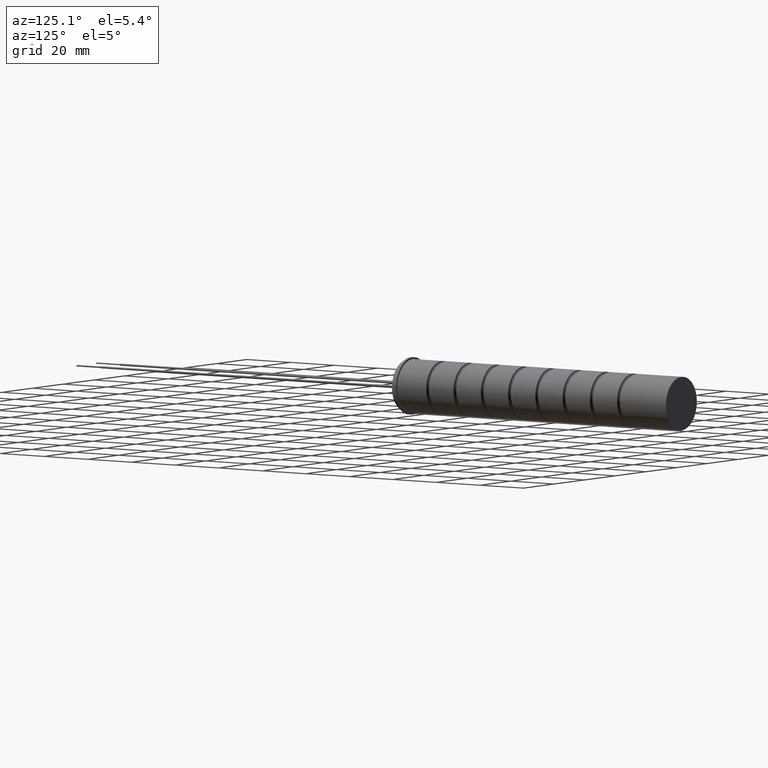
[diagram: clean part render]
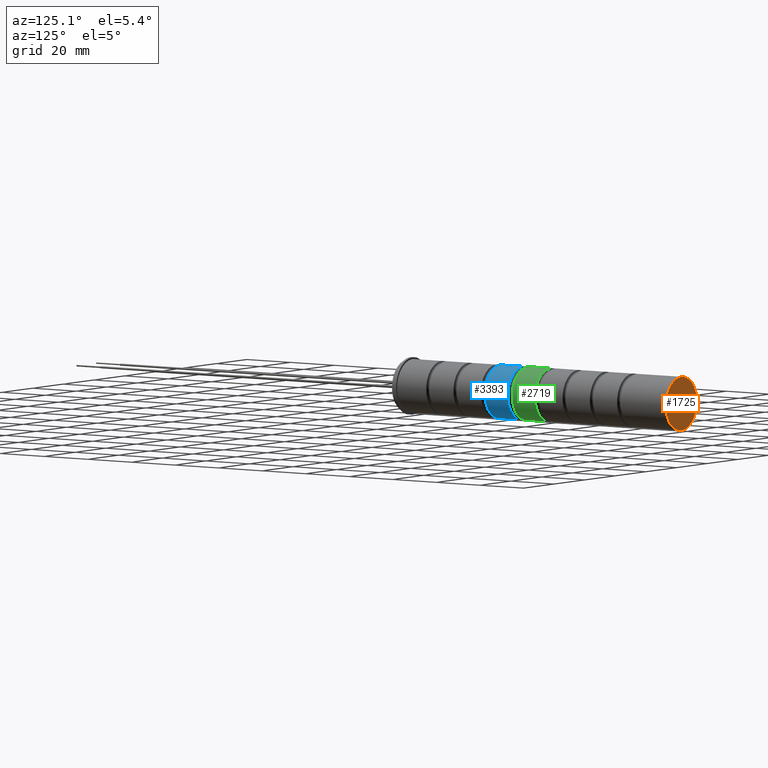
[diagram: same view with three faces highlighted in distinct colors, each labeled with its STEP entity id]
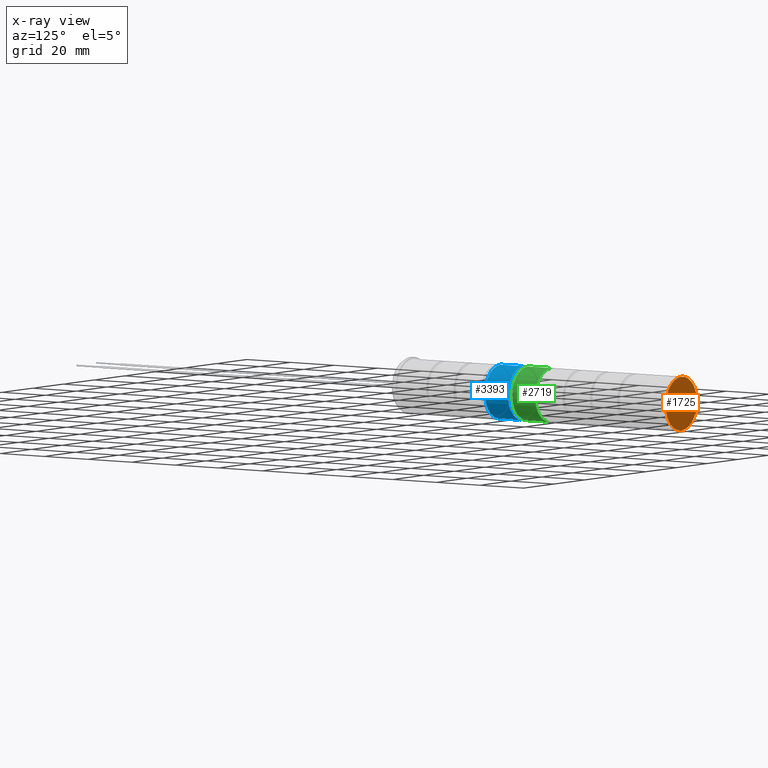
[diagram: x-ray of the same camera — body ghosted, the three highlighted faces saturated]
A machine part, auxiliary view with three faces highlighted in distinct colors.
The next image is the same camera in x-ray (body ghosted, the three faces saturated) — at least one of them is partly hidden behind the body in this view.
Their STEP definitions:

[orange] entity #1725 — the highlighted planar face has unit normal (0, 1, 0).
#36 = CARTESIAN_POINT ( 'NONE',  ( 5.163478142038603600, 125.9000000000000100, 1.512381406993834600 ) ) ;
#54 = DIRECTION ( 'NONE',  ( 0.0000000000000000000, 1.000000000000000000, 0.0000000000000000000 ) ) ;
#68 = VECTOR ( 'NONE', #3321, 1000.000000000000100 ) ;
#70 = ORIENTED_EDGE ( 'NONE', *, *, #1214, .F. ) ;
#74 = VERTEX_POINT ( 'NONE', #4720 ) ;
#77 = CARTESIAN_POINT ( 'NONE',  ( -6.389346714668432600, 125.9000000000000100, -0.1296916808415295700 ) ) ;
#87 = EDGE_CURVE ( 'NONE', #1929, #751, #2536, .T. ) ;
#95 = DIRECTION ( 'NONE',  ( -0.2762517575166425500, 0.0000000000000000000, 0.9610853065513831300 ) ) ;
#111 = CARTESIAN_POINT ( 'NONE',  ( -3.073241531447511200, 125.9000000000000100, -0.3736936597755416400 ) ) ;
#116 = DIRECTION ( 'NONE',  ( 0.2740217765954065500, 0.0000000000000000000, -0.9617234872620595800 ) ) ;
#129 = LINE ( 'NONE', #3218, #3385 ) ;
#131 = CARTESIAN_POINT ( 'NONE',  ( -3.446908929830707200, 125.9000000000000100, 0.9370204187942854400 ) ) ;
#134 = VERTEX_POINT ( 'NONE', #3935 ) ;
#137 = DIRECTION ( 'NONE',  ( 0.2746459304916903900, 0.0000000000000000000, -0.9615454294334477800 ) ) ;
#144 = ORIENTED_EDGE ( 'NONE', *, *, #3701, .F. ) ;
#154 = VERTEX_POINT ( 'NONE', #3677 ) ;
#169 = CARTESIAN_POINT ( 'NONE',  ( 7.722211540264785500, 125.9000000000000100, -1.511845419271361500 ) ) ;
#179 = CARTESIAN_POINT ( 'NONE',  ( 3.236639526276111000, 125.9000000000000100, 0.1853821388750753800 ) ) ;
#185 = CARTESIAN_POINT ( 'NONE',  ( -4.078900387599527600, 125.9000000000000100, -1.511845419271360200 ) ) ;
#192 = LINE ( 'NONE', #1811, #4082 ) ;
#200 = ORIENTED_EDGE ( 'NONE', *, *, #872, .F. ) ;
#201 = FACE_BOUND ( 'NONE', #4679, .T. ) ;
#203 = EDGE_CURVE ( 'NONE', #4278, #3505, #2475, .T. ) ;
#230 = DIRECTION ( 'NONE',  ( 1.000000000000000000, 0.0000000000000000000, -8.056442090582003100E-016 ) ) ;
#236 = VECTOR ( 'NONE', #4280, 1000.000000000000000 ) ;
#248 = CARTESIAN_POINT ( 'NONE',  ( 6.726378173961584200, 125.9000000000000100, -0.9279234420928131900 ) ) ;
#265 = VECTOR ( 'NONE', #4560, 1000.000000000000000 ) ;
#270 = VECTOR ( 'NONE', #720, 999.9999999999998900 ) ;
#310 = EDGE_LOOP ( 'NONE', ( #1390, #1612, #1770, #2145, #681, #1596, #4741, #4092, #4639, #3967, #4593, #2293, #1227, #3928, #1263, #2479, #4608 ) ) ;
#318 = DIRECTION ( 'NONE',  ( 0.0000000000000000000, 1.000000000000000000, 0.0000000000000000000 ) ) ;
#323 = CARTESIAN_POINT ( 'NONE',  ( -1.368197817950697900, 125.9000000000000100, -1.511845419271360200 ) ) ;
#342 = CARTESIAN_POINT ( 'NONE',  ( 2.503024381027683500, 125.9000000000000100, -1.511845419271361100 ) ) ;
#345 = CARTESIAN_POINT ( 'NONE',  ( -3.232746273359999200, 125.9000000000000100, 0.1853821388687315100 ) ) ;
#354 = DIRECTION ( 'NONE',  ( -1.000000000000000000, 0.0000000000000000000, 0.0000000000000000000 ) ) ;
#363 = EDGE_CURVE ( 'NONE', #2087, #1805, #2058, .T. ) ;
#371 = EDGE_CURVE ( 'NONE', #1299, #4559, #3697, .T. ) ;
#388 = ORIENTED_EDGE ( 'NONE', *, *, #87, .F. ) ;
#406 = VERTEX_POINT ( 'NONE', #527 ) ;
#418 = LINE ( 'NONE', #2907, #943 ) ;
#419 = CARTESIAN_POINT ( 'NONE',  ( 0.2137552396348912900, 125.9000000000000100, 1.512381406993835900 ) ) ;
#424 = LINE ( 'NONE', #4790, #1852 ) ;
#428 = DIRECTION ( 'NONE',  ( 0.2755265765475187200, -0.0000000000000000000, -0.9612934544747531200 ) ) ;
#434 = ORIENTED_EDGE ( 'NONE', *, *, #371, .F. ) ;
#436 = VECTOR ( 'NONE', #4080, 1000.000000000000000 ) ;
#443 = EDGE_CURVE ( 'NONE', #3505, #952, #3635, .T. ) ;
#446 = ORIENTED_EDGE ( 'NONE', *, *, #4647, .F. ) ;
#463 = CARTESIAN_POINT ( 'NONE',  ( 3.559823756595848400, 125.9000000000000100, -0.9360982210452172300 ) ) ;
#473 = VERTEX_POINT ( 'NONE', #2398 ) ;
#485 = DIRECTION ( 'NONE',  ( -0.2764273280489766800, 0.0000000000000000000, 0.9610348236706635100 ) ) ;
#507 = ORIENTED_EDGE ( 'NONE', *, *, #4409, .T. ) ;
#511 = ORIENTED_EDGE ( 'NONE', *, *, #1323, .F. ) ;
#514 = DIRECTION ( 'NONE',  ( 0.0000000000000000000, 1.000000000000000000, 0.0000000000000000000 ) ) ;
#516 = CARTESIAN_POINT ( 'NONE',  ( -5.074145240952069500, 125.9000000000000100, -1.511845419271360200 ) ) ;
#517 = CARTESIAN_POINT ( 'NONE',  ( -5.730224127601281300, 125.9000000000000100, 1.512381406993835500 ) ) ;
#523 = ORIENTED_EDGE ( 'NONE', *, *, #994, .F. ) ;
#527 = CARTESIAN_POINT ( 'NONE',  ( 3.396144268184926300, 125.9000000000000100, -0.3735925095248245300 ) ) ;
#530 = PLANE ( 'NONE',  #4421 ) ;
#539 = LINE ( 'NONE', #1634, #660 ) ;
#575 = LINE ( 'NONE', #743, #3517 ) ;
#585 = VERTEX_POINT ( 'NONE', #2234 ) ;
#587 = VECTOR ( 'NONE', #964, 1000.000000000000100 ) ;
#598 = LINE ( 'NONE', #3458, #4297 ) ;
#601 = EDGE_CURVE ( 'NONE', #3489, #1358, #1321, .T. ) ;
#604 = LINE ( 'NONE', #2975, #4131 ) ;
#617 = CARTESIAN_POINT ( 'NONE',  ( 0.0000000000000000000, 125.9000000000000100, 0.0000000000000000000 ) ) ;
#618 = AXIS2_PLACEMENT_3D ( 'NONE', #4093, #318, #731 ) ;
#629 = VERTEX_POINT ( 'NONE', #4797 ) ;
#630 = CARTESIAN_POINT ( 'NONE',  ( -1.214624161055740000, 125.9000000000000100, 1.512381406993836400 ) ) ;
#631 = EDGE_CURVE ( 'NONE', #4559, #3139, #1729, .T. ) ;
#636 = CARTESIAN_POINT ( 'NONE',  ( 5.865093027754670500, 125.9000000000000100, -0.9279234421003176300 ) ) ;
#642 = VECTOR ( 'NONE', #4634, 1000.000000000000200 ) ;
#647 = CARTESIAN_POINT ( 'NONE',  ( 4.534286832206290400, 125.9000000000000100, 0.1853821388750753800 ) ) ;
#651 = LINE ( 'NONE', #3490, #1196 ) ;
#658 = CARTESIAN_POINT ( 'NONE',  ( -6.850840110267109900, 125.9000000000000100, -1.511845419271360200 ) ) ;
#660 = VECTOR ( 'NONE', #3874, 1000.000000000000000 ) ;
#668 = EDGE_CURVE ( 'NONE', #4408, #1929, #897, .T. ) ;
#679 = VECTOR ( 'NONE', #3318, 1000.000000000000000 ) ;
#681 = ORIENTED_EDGE ( 'NONE', *, *, #4153, .F. ) ;
#689 = CARTESIAN_POINT ( 'NONE',  ( -5.989738873596197200, 125.9000000000000100, -1.511845419271360200 ) ) ;
#697 = VERTEX_POINT ( 'NONE', #2266 ) ;
#720 = DIRECTION ( 'NONE',  ( 0.9999960426590096500, 0.0000000000000000000, 0.002813301676023199000 ) ) ;
#723 = LINE ( 'NONE', #1393, #3312 ) ;
#725 = LINE ( 'NONE', #2218, #2895 ) ;
#731 = DIRECTION ( 'NONE',  ( 0.0000000000000000000, 0.0000000000000000000, 1.000000000000000000 ) ) ;
#743 = CARTESIAN_POINT ( 'NONE',  ( 1.641923144357048800, 125.9000000000000100, -1.192973867605196400 ) ) ;
#748 = CARTESIAN_POINT ( 'NONE',  ( 4.945692467684854600, 125.9000000000000100, -0.9321993388483560400 ) ) ;
#751 = VERTEX_POINT ( 'NONE', #3033 ) ;
#778 = CARTESIAN_POINT ( 'NONE',  ( -1.531693396827904100, 125.9000000000000100, -0.9361993712943260700 ) ) ;
#782 = LINE ( 'NONE', #323, #4137 ) ;
#851 = ORIENTED_EDGE ( 'NONE', *, *, #601, .F. ) ;
#853 = EDGE_CURVE ( 'NONE', #2346, #1313, #2139, .T. ) ;
#872 = EDGE_CURVE ( 'NONE', #1313, #3335, #782, .T. ) ;
#873 = DIRECTION ( 'NONE',  ( -0.7059037656364501900, -0.0000000000000000000, 0.7083077534943970100 ) ) ;
#876 = CARTESIAN_POINT ( 'NONE',  ( 0.0000000000000000000, 125.9000000000000100, -10.15000000000000000 ) ) ;
#890 = VECTOR ( 'NONE', #2415, 1000.000000000000000 ) ;
#897 = LINE ( 'NONE', #2200, #4546 ) ;
#905 = LINE ( 'NONE', #630, #4555 ) ;
#915 = CARTESIAN_POINT ( 'NONE',  ( -0.4415604200045902800, 125.9000000000000100, -1.180008245214740200 ) ) ;
#916 = EDGE_CURVE ( 'NONE', #3139, #3489, #2378, .T. ) ;
#919 = CARTESIAN_POINT ( 'NONE',  ( -7.719950607297668900, 125.9000000000000100, 1.512381406993835100 ) ) ;
#943 = VECTOR ( 'NONE', #4086, 1000.000000000000000 ) ;
#952 = VERTEX_POINT ( 'NONE', #1202 ) ;
#964 = DIRECTION ( 'NONE',  ( -0.2765379750249955500, 0.0000000000000000000, 0.9610029908221279200 ) ) ;
#966 = CARTESIAN_POINT ( 'NONE',  ( 4.282385938637075300, 125.9000000000000100, 1.512381406993834600 ) ) ;
#971 = EDGE_CURVE ( 'NONE', #4271, #3265, #604, .T. ) ;
#994 = EDGE_CURVE ( 'NONE', #751, #2941, #1142, .T. ) ;
#1011 = VECTOR ( 'NONE', #1803, 1000.000000000000000 ) ;
#1030 = VERTEX_POINT ( 'NONE', #2182 ) ;
#1071 = DIRECTION ( 'NONE',  ( 1.000000000000000000, 0.0000000000000000000, 0.0000000000000000000 ) ) ;
#1075 = DIRECTION ( 'NONE',  ( -1.000000000000000000, 0.0000000000000000000, 0.0000000000000000000 ) ) ;
#1081 = VERTEX_POINT ( 'NONE', #4883 ) ;
#1115 = DIRECTION ( 'NONE',  ( 0.3725077383644743700, -0.0000000000000000000, 0.9280290862136727500 ) ) ;
#1134 = DIRECTION ( 'NONE',  ( 0.2732148821746259700, 0.0000000000000000000, -0.9619530280415491400 ) ) ;
#1135 = CARTESIAN_POINT ( 'NONE',  ( -5.490700345908943600, 125.9000000000000100, -0.1296916808415655400 ) ) ;
#1142 = LINE ( 'NONE', #4815, #3781 ) ;
#1146 = CARTESIAN_POINT ( 'NONE',  ( -1.531693396827904100, 125.9000000000000100, -0.9361993712943260700 ) ) ;
#1159 = VERTEX_POINT ( 'NONE', #4657 ) ;
#1163 = ORIENTED_EDGE ( 'NONE', *, *, #3521, .F. ) ;
#1174 = EDGE_CURVE ( 'NONE', #3178, #2463, #1203, .T. ) ;
#1196 = VECTOR ( 'NONE', #873, 1000.000000000000100 ) ;
#1202 = CARTESIAN_POINT ( 'NONE',  ( 1.641923144357048800, 125.9000000000000100, -1.192973867605196400 ) ) ;
#1203 = LINE ( 'NONE', #1660, #236 ) ;
#1214 = EDGE_CURVE ( 'NONE', #697, #3417, #2841, .T. ) ;
#1227 = ORIENTED_EDGE ( 'NONE', *, *, #1415, .F. ) ;
#1228 = VECTOR ( 'NONE', #116, 1000.000000000000100 ) ;
#1240 = DIRECTION ( 'NONE',  ( 0.0000000000000000000, -0.0000000000000000000, 1.000000000000000000 ) ) ;
#1243 = DIRECTION ( 'NONE',  ( 0.2763139702539115800, 0.0000000000000000000, -0.9610674221107072800 ) ) ;
#1249 = DIRECTION ( 'NONE',  ( 0.0000000000000000000, 0.0000000000000000000, 1.000000000000000000 ) ) ;
#1259 = LINE ( 'NONE', #36, #3650 ) ;
#1263 = ORIENTED_EDGE ( 'NONE', *, *, #1391, .F. ) ;
#1266 = ORIENTED_EDGE ( 'NONE', *, *, #3981, .F. ) ;
#1271 = CARTESIAN_POINT ( 'NONE',  ( -4.472645986919185500, 125.9000000000000100, 1.512381406993837700 ) ) ;
#1277 = EDGE_LOOP ( 'NONE', ( #507, #4055 ) ) ;
#1279 = CARTESIAN_POINT ( 'NONE',  ( 0.8650340849261387600, 125.9000000000000100, 1.512381406993835900 ) ) ;
#1299 = VERTEX_POINT ( 'NONE', #658 ) ;
#1313 = VERTEX_POINT ( 'NONE', #2001 ) ;
#1316 = EDGE_CURVE ( 'NONE', #585, #4214, #4176, .T. ) ;
#1321 = LINE ( 'NONE', #3289, #4193 ) ;
#1323 = EDGE_CURVE ( 'NONE', #4892, #4084, #2546, .T. ) ;
#1353 = EDGE_CURVE ( 'NONE', #1805, #1030, #598, .T. ) ;
#1358 = VERTEX_POINT ( 'NONE', #517 ) ;
#1375 = LINE ( 'NONE', #966, #1619 ) ;
#1383 = ORIENTED_EDGE ( 'NONE', *, *, #1542, .F. ) ;
#1389 = CARTESIAN_POINT ( 'NONE',  ( -2.909562043033028900, 125.9000000000000100, -0.9361993712943260700 ) ) ;
#1390 = ORIENTED_EDGE ( 'NONE', *, *, #363, .F. ) ;
#1391 = EDGE_CURVE ( 'NONE', #154, #1159, #1842, .T. ) ;
#1393 = CARTESIAN_POINT ( 'NONE',  ( -5.989738873596197200, 125.9000000000000100, -1.511845419271360200 ) ) ;
#1415 = EDGE_CURVE ( 'NONE', #2243, #2138, #3775, .T. ) ;
#1416 = VERTEX_POINT ( 'NONE', #3836 ) ;
#1419 = DIRECTION ( 'NONE',  ( 0.2745159998572700400, 0.0000000000000000000, -0.9615825319869133500 ) ) ;
#1423 = CIRCLE ( 'NONE', #2060, 10.15000000000000000 ) ;
#1476 = ORIENTED_EDGE ( 'NONE', *, *, #4119, .F. ) ;
#1498 = EDGE_LOOP ( 'NONE', ( #1163, #4605, #144, #3543, #3500, #1727, #4700, #1947, #1476, #1537, #446, #200, #3173, #2831, #511, #1266, #4673, #2643, #2295, #70, #2106, #4368, #2380 ) ) ;
#1500 = VECTOR ( 'NONE', #3574, 1000.000000000000100 ) ;
#1506 = CARTESIAN_POINT ( 'NONE',  ( 5.112424856845957600, 125.9000000000000100, -1.511845419271361500 ) ) ;
#1526 = VERTEX_POINT ( 'NONE', #3048 ) ;
#1537 = ORIENTED_EDGE ( 'NONE', *, *, #3236, .F. ) ;
#1542 = EDGE_CURVE ( 'NONE', #2941, #134, #651, .T. ) ;
#1549 = VECTOR ( 'NONE', #428, 1000.000000000000100 ) ;
#1596 = ORIENTED_EDGE ( 'NONE', *, *, #2391, .F. ) ;
#1612 = ORIENTED_EDGE ( 'NONE', *, *, #2747, .F. ) ;
#1619 = VECTOR ( 'NONE', #4351, 1000.000000000000100 ) ;
#1634 = CARTESIAN_POINT ( 'NONE',  ( -6.850840110267109900, 125.9000000000000100, -1.511845419271360200 ) ) ;
#1660 = CARTESIAN_POINT ( 'NONE',  ( 0.1050587015666948200, 125.9000000000000100, 0.6487010819598167900 ) ) ;
#1670 = VECTOR ( 'NONE', #2342, 1000.000000000000100 ) ;
#1672 = VERTEX_POINT ( 'NONE', #876 ) ;
#1689 = LINE ( 'NONE', #131, #1228 ) ;
#1702 = EDGE_CURVE ( 'NONE', #3417, #3395, #1689, .T. ) ;
#1716 = CARTESIAN_POINT ( 'NONE',  ( 0.1050587015666948200, 125.9000000000000100, 0.6487010819598167900 ) ) ;
#1725 = ADVANCED_FACE ( 'NONE', ( #3211, #2691, #201, #4091 ), #530, .T. ) ;
#1727 = ORIENTED_EDGE ( 'NONE', *, *, #443, .F. ) ;
#1729 = LINE ( 'NONE', #1838, #1011 ) ;
#1753 = DIRECTION ( 'NONE',  ( -1.000000000000000000, 0.0000000000000000000, 0.0000000000000000000 ) ) ;
#1756 = CARTESIAN_POINT ( 'NONE',  ( 4.282385938637075300, 125.9000000000000100, 1.512381406993834600 ) ) ;
#1769 = EDGE_CURVE ( 'NONE', #3538, #697, #2337, .T. ) ;
#1770 = ORIENTED_EDGE ( 'NONE', *, *, #2176, .F. ) ;
#1776 = VECTOR ( 'NONE', #1243, 1000.000000000000100 ) ;
#1787 = VECTOR ( 'NONE', #1134, 999.9999999999998900 ) ;
#1803 = DIRECTION ( 'NONE',  ( 1.000000000000000000, -0.0000000000000000000, 5.043083451645377500E-016 ) ) ;
#1805 = VERTEX_POINT ( 'NONE', #636 ) ;
#1811 = CARTESIAN_POINT ( 'NONE',  ( -1.775208015488634500, 125.9000000000000100, -0.3736936597755416400 ) ) ;
#1838 = CARTESIAN_POINT ( 'NONE',  ( -6.859998807664633900, 125.9000000000000100, 1.512381406993835500 ) ) ;
#1842 = LINE ( 'NONE', #2350, #1907 ) ;
#1852 = VECTOR ( 'NONE', #2161, 1000.000000000000000 ) ;
#1860 = LINE ( 'NONE', #248, #1500 ) ;
#1862 = CARTESIAN_POINT ( 'NONE',  ( -3.232746273359999200, 125.9000000000000100, 0.1853821388687315100 ) ) ;
#1875 = DIRECTION ( 'NONE',  ( -0.2762033010252011300, -0.0000000000000000000, 0.9610992334315858800 ) ) ;
#1897 = VECTOR ( 'NONE', #2506, 1000.000000000000000 ) ;
#1907 = VECTOR ( 'NONE', #4582, 1000.000000000000100 ) ;
#1926 = CARTESIAN_POINT ( 'NONE',  ( 7.554383569957374300, 125.9000000000000100, -0.9278577080101569900 ) ) ;
#1928 = LINE ( 'NONE', #915, #4200 ) ;
#1929 = VERTEX_POINT ( 'NONE', #1135 ) ;
#1947 = ORIENTED_EDGE ( 'NONE', *, *, #3867, .F. ) ;
#1949 = ORIENTED_EDGE ( 'NONE', *, *, #3645, .F. ) ;
#1952 = DIRECTION ( 'NONE',  ( 0.2762033010288950100, 0.0000000000000000000, -0.9610992334305243900 ) ) ;
#1955 = CARTESIAN_POINT ( 'NONE',  ( -1.214624161055740000, 125.9000000000000100, 1.512381406993836400 ) ) ;
#1976 = CARTESIAN_POINT ( 'NONE',  ( -6.389346714668432600, 125.9000000000000100, -0.1296916808415295700 ) ) ;
#2001 = CARTESIAN_POINT ( 'NONE',  ( -1.368197817950697900, 125.9000000000000100, -1.511845419271360200 ) ) ;
#2058 = LINE ( 'NONE', #748, #4838 ) ;
#2060 = AXIS2_PLACEMENT_3D ( 'NONE', #4568, #54, #1249 ) ;
#2087 = VERTEX_POINT ( 'NONE', #3562 ) ;
#2106 = ORIENTED_EDGE ( 'NONE', *, *, #1769, .F. ) ;
#2138 = VERTEX_POINT ( 'NONE', #169 ) ;
#2139 = LINE ( 'NONE', #778, #1787 ) ;
#2145 = ORIENTED_EDGE ( 'NONE', *, *, #3751, .F. ) ;
#2161 = DIRECTION ( 'NONE',  ( 1.000000000000000000, 0.0000000000000000000, 0.0000000000000000000 ) ) ;
#2176 = EDGE_CURVE ( 'NONE', #406, #2509, #3731, .T. ) ;
#2182 = CARTESIAN_POINT ( 'NONE',  ( 5.163478142038603600, 125.9000000000000100, 1.512381406993834600 ) ) ;
#2194 = VERTEX_POINT ( 'NONE', #4449 ) ;
#2200 = CARTESIAN_POINT ( 'NONE',  ( -5.490700345908943600, 125.9000000000000100, -0.1296916808415655400 ) ) ;
#2218 = CARTESIAN_POINT ( 'NONE',  ( 3.236639526276111000, 125.9000000000000100, 0.1853821388750753800 ) ) ;
#2229 = VERTEX_POINT ( 'NONE', #1756 ) ;
#2234 = CARTESIAN_POINT ( 'NONE',  ( 2.867367568277221100, 125.9000000000000100, -1.511845419271361100 ) ) ;
#2243 = VERTEX_POINT ( 'NONE', #2520 ) ;
#2266 = CARTESIAN_POINT ( 'NONE',  ( -1.770444758475170600, 125.9000000000000100, 0.9370204187942854400 ) ) ;
#2291 = DIRECTION ( 'NONE',  ( -0.2760118818968562100, 0.0000000000000000000, 0.9611542233438689100 ) ) ;
#2293 = ORIENTED_EDGE ( 'NONE', *, *, #4862, .F. ) ;
#2295 = ORIENTED_EDGE ( 'NONE', *, *, #1702, .F. ) ;
#2332 = DIRECTION ( 'NONE',  ( -0.2763173343569901300, 0.0000000000000000000, 0.9610664548998926200 ) ) ;
#2334 = LINE ( 'NONE', #2814, #679 ) ;
#2337 = LINE ( 'NONE', #3162, #3556 ) ;
#2342 = DIRECTION ( 'NONE',  ( -0.4443210308329522100, 0.0000000000000000000, 0.8958676361826799500 ) ) ;
#2346 = VERTEX_POINT ( 'NONE', #1146 ) ;
#2350 = CARTESIAN_POINT ( 'NONE',  ( 6.024965588738327300, 125.9000000000000100, 1.512381406993834200 ) ) ;
#2358 = VERTEX_POINT ( 'NONE', #3768 ) ;
#2364 = CARTESIAN_POINT ( 'NONE',  ( -4.810051147472449000, 125.9000000000000100, 1.512381406993835100 ) ) ;
#2371 = LINE ( 'NONE', #4229, #3183 ) ;
#2378 = LINE ( 'NONE', #77, #1549 ) ;
#2380 = ORIENTED_EDGE ( 'NONE', *, *, #1174, .F. ) ;
#2382 = CARTESIAN_POINT ( 'NONE',  ( 2.867367568277221100, 125.9000000000000100, -1.511845419271361100 ) ) ;
#2391 = EDGE_CURVE ( 'NONE', #3265, #473, #725, .T. ) ;
#2396 = EDGE_CURVE ( 'NONE', #2358, #1672, #2729, .T. ) ;
#2398 = CARTESIAN_POINT ( 'NONE',  ( 4.534286832206290400, 125.9000000000000100, 0.1853821388750753800 ) ) ;
#2415 = DIRECTION ( 'NONE',  ( 1.000000000000000000, 0.0000000000000000000, -5.643191901580733400E-016 ) ) ;
#2432 = VECTOR ( 'NONE', #1075, 1000.000000000000000 ) ;
#2463 = VERTEX_POINT ( 'NONE', #3045 ) ;
#2466 = CARTESIAN_POINT ( 'NONE',  ( -6.859998807664633900, 125.9000000000000100, 1.512381406993835500 ) ) ;
#2475 = LINE ( 'NONE', #4015, #1897 ) ;
#2479 = ORIENTED_EDGE ( 'NONE', *, *, #2531, .F. ) ;
#2483 = VECTOR ( 'NONE', #2762, 1000.000000000000200 ) ;
#2506 = DIRECTION ( 'NONE',  ( 1.000000000000000000, 0.0000000000000000000, 0.0000000000000000000 ) ) ;
#2509 = VERTEX_POINT ( 'NONE', #463 ) ;
#2520 = CARTESIAN_POINT ( 'NONE',  ( 7.554383569957374300, 125.9000000000000100, -0.9278577080101569900 ) ) ;
#2531 = EDGE_CURVE ( 'NONE', #1030, #154, #1259, .T. ) ;
#2536 = LINE ( 'NONE', #185, #4475 ) ;
#2546 = LINE ( 'NONE', #111, #2483 ) ;
#2581 = CARTESIAN_POINT ( 'NONE',  ( 4.693975483652671700, 125.9000000000000100, -0.3735925095248246500 ) ) ;
#2606 = CARTESIAN_POINT ( 'NONE',  ( -3.446908929830707200, 125.9000000000000100, 0.9370204187942854400 ) ) ;
#2638 = ORIENTED_EDGE ( 'NONE', *, *, #631, .F. ) ;
#2643 = ORIENTED_EDGE ( 'NONE', *, *, #4240, .F. ) ;
#2691 = FACE_OUTER_BOUND ( 'NONE', #1277, .T. ) ;
#2701 = CARTESIAN_POINT ( 'NONE',  ( 1.176619063630954600, 125.9000000000000100, -1.511845419271360600 ) ) ;
#2709 = LINE ( 'NONE', #4719, #587 ) ;
#2712 = VECTOR ( 'NONE', #1875, 1000.000000000000100 ) ;
#2729 = CIRCLE ( 'NONE', #618, 10.15000000000000000 ) ;
#2747 = EDGE_CURVE ( 'NONE', #2509, #2087, #3044, .T. ) ;
#2754 = EDGE_CURVE ( 'NONE', #952, #2194, #575, .T. ) ;
#2762 = DIRECTION ( 'NONE',  ( 0.2793947940878294100, 0.0000000000000000000, -0.9601763114327593900 ) ) ;
#2770 = CARTESIAN_POINT ( 'NONE',  ( 1.997493844237220300, 125.9000000000000100, 1.512381406993835500 ) ) ;
#2776 = VECTOR ( 'NONE', #1952, 1000.000000000000000 ) ;
#2802 = VERTEX_POINT ( 'NONE', #1955 ) ;
#2814 = CARTESIAN_POINT ( 'NONE',  ( 0.2213618175255153700, 125.9000000000000100, -1.511845419271360600 ) ) ;
#2822 = VECTOR ( 'NONE', #3676, 1000.000000000000000 ) ;
#2831 = ORIENTED_EDGE ( 'NONE', *, *, #3529, .F. ) ;
#2841 = LINE ( 'NONE', #4114, #2432 ) ;
#2858 = EDGE_CURVE ( 'NONE', #1358, #4408, #3974, .T. ) ;
#2895 = VECTOR ( 'NONE', #2998, 1000.000000000000000 ) ;
#2907 = CARTESIAN_POINT ( 'NONE',  ( 4.445679217018713400, 125.9000000000000100, 0.9369100730795376600 ) ) ;
#2941 = VERTEX_POINT ( 'NONE', #516 ) ;
#2957 = CARTESIAN_POINT ( 'NONE',  ( -3.073241531447511200, 125.9000000000000100, -0.3736936597755416400 ) ) ;
#2965 = LINE ( 'NONE', #647, #4801 ) ;
#2975 = CARTESIAN_POINT ( 'NONE',  ( 3.022090659781504000, 125.9000000000000100, 0.9369100730795376600 ) ) ;
#2976 = CARTESIAN_POINT ( 'NONE',  ( -7.719950607297668900, 125.9000000000000100, 1.512381406993835100 ) ) ;
#2998 = DIRECTION ( 'NONE',  ( 1.000000000000000000, 0.0000000000000000000, 0.0000000000000000000 ) ) ;
#3017 = LINE ( 'NONE', #3519, #1776 ) ;
#3022 = EDGE_CURVE ( 'NONE', #1081, #3074, #4622, .T. ) ;
#3024 = VERTEX_POINT ( 'NONE', #1271 ) ;
#3033 = CARTESIAN_POINT ( 'NONE',  ( -4.078900387599527600, 125.9000000000000100, -1.511845419271360200 ) ) ;
#3044 = LINE ( 'NONE', #4519, #270 ) ;
#3045 = CARTESIAN_POINT ( 'NONE',  ( 0.2213618175255153700, 125.9000000000000100, -1.511845419271360600 ) ) ;
#3048 = CARTESIAN_POINT ( 'NONE',  ( 2.503024381027683500, 125.9000000000000100, -1.511845419271361100 ) ) ;
#3074 = VERTEX_POINT ( 'NONE', #4295 ) ;
#3139 = VERTEX_POINT ( 'NONE', #2466 ) ;
#3149 = EDGE_CURVE ( 'NONE', #134, #3555, #723, .T. ) ;
#3162 = CARTESIAN_POINT ( 'NONE',  ( -1.066549394477186200, 125.9000000000000100, -1.511845419271360200 ) ) ;
#3173 = ORIENTED_EDGE ( 'NONE', *, *, #853, .F. ) ;
#3178 = VERTEX_POINT ( 'NONE', #1716 ) ;
#3183 = VECTOR ( 'NONE', #3464, 1000.000000000000000 ) ;
#3196 = CARTESIAN_POINT ( 'NONE',  ( -1.934896666938533700, 125.9000000000000100, 0.1853821388687315100 ) ) ;
#3211 = FACE_BOUND ( 'NONE', #1498, .T. ) ;
#3218 = CARTESIAN_POINT ( 'NONE',  ( -1.752927377436052100, 125.9000000000000100, 1.512381406993836800 ) ) ;
#3236 = EDGE_CURVE ( 'NONE', #3024, #2802, #129, .T. ) ;
#3261 = DIRECTION ( 'NONE',  ( 0.2759782365590803800, 0.0000000000000000000, -0.9611638845408936300 ) ) ;
#3265 = VERTEX_POINT ( 'NONE', #179 ) ;
#3268 = EDGE_CURVE ( 'NONE', #1159, #2243, #1860, .T. ) ;
#3271 = CARTESIAN_POINT ( 'NONE',  ( 1.633536869445520800, 125.9000000000000100, 1.512381406993835500 ) ) ;
#3278 = DIRECTION ( 'NONE',  ( 0.2755520632520605500, -0.0000000000000000000, -0.9612861490927311300 ) ) ;
#3289 = CARTESIAN_POINT ( 'NONE',  ( -5.730224127601281300, 125.9000000000000100, 1.512381406993835500 ) ) ;
#3304 = DIRECTION ( 'NONE',  ( -1.000000000000000000, -0.0000000000000000000, -0.0000000000000000000 ) ) ;
#3312 = VECTOR ( 'NONE', #3278, 1000.000000000000100 ) ;
#3318 = DIRECTION ( 'NONE',  ( -1.000000000000000000, 0.0000000000000000000, 3.367319617629760300E-016 ) ) ;
#3321 = DIRECTION ( 'NONE',  ( 0.2793947940814912000, 0.0000000000000000000, -0.9601763114346036900 ) ) ;
#3335 = VERTEX_POINT ( 'NONE', #4713 ) ;
#3385 = VECTOR ( 'NONE', #230, 1000.000000000000000 ) ;
#3395 = VERTEX_POINT ( 'NONE', #345 ) ;
#3417 = VERTEX_POINT ( 'NONE', #2606 ) ;
#3439 = DIRECTION ( 'NONE',  ( 1.000000000000000000, 0.0000000000000000000, -5.034093887909708100E-016 ) ) ;
#3449 = CARTESIAN_POINT ( 'NONE',  ( -4.810051147472449000, 125.9000000000000100, 1.512381406993835100 ) ) ;
#3458 = CARTESIAN_POINT ( 'NONE',  ( 5.865093027754670500, 125.9000000000000100, -0.9279234421003176300 ) ) ;
#3464 = DIRECTION ( 'NONE',  ( -1.000000000000000000, 0.0000000000000000000, 0.0000000000000000000 ) ) ;
#3489 = VERTEX_POINT ( 'NONE', #1976 ) ;
#3490 = CARTESIAN_POINT ( 'NONE',  ( -6.359415435013091600, 125.9000000000000100, -0.2221981782372030600 ) ) ;
#3500 = ORIENTED_EDGE ( 'NONE', *, *, #2754, .F. ) ;
#3505 = VERTEX_POINT ( 'NONE', #419 ) ;
#3517 = VECTOR ( 'NONE', #2291, 1000.000000000000200 ) ;
#3519 = CARTESIAN_POINT ( 'NONE',  ( 1.633536869445520300, 125.9000000000000100, 1.512381406993835500 ) ) ;
#3521 = EDGE_CURVE ( 'NONE', #74, #3178, #3840, .T. ) ;
#3522 = DIRECTION ( 'NONE',  ( 1.000000000000000000, 0.0000000000000000000, -3.796073084213733300E-016 ) ) ;
#3529 = EDGE_CURVE ( 'NONE', #4084, #2346, #424, .T. ) ;
#3536 = VECTOR ( 'NONE', #485, 1000.000000000000100 ) ;
#3538 = VERTEX_POINT ( 'NONE', #4575 ) ;
#3543 = ORIENTED_EDGE ( 'NONE', *, *, #4501, .F. ) ;
#3555 = VERTEX_POINT ( 'NONE', #689 ) ;
#3556 = VECTOR ( 'NONE', #95, 1000.000000000000000 ) ;
#3562 = CARTESIAN_POINT ( 'NONE',  ( 4.945692467684854600, 125.9000000000000100, -0.9321993388483560400 ) ) ;
#3566 = DIRECTION ( 'NONE',  ( 0.7145695586381808400, -0.0000000000000000000, -0.6995643972270425600 ) ) ;
#3574 = DIRECTION ( 'NONE',  ( 0.9999999968487352000, 0.0000000000000000000, 7.938847109813210900E-005 ) ) ;
#3581 = VERTEX_POINT ( 'NONE', #3271 ) ;
#3591 = LINE ( 'NONE', #1279, #890 ) ;
#3619 = EDGE_CURVE ( 'NONE', #1416, #4271, #418, .T. ) ;
#3635 = LINE ( 'NONE', #3871, #642 ) ;
#3645 = EDGE_CURVE ( 'NONE', #3555, #1299, #539, .T. ) ;
#3650 = VECTOR ( 'NONE', #3439, 1000.000000000000000 ) ;
#3676 = DIRECTION ( 'NONE',  ( -1.000000000000000000, 0.0000000000000000000, 1.931714042231327000E-016 ) ) ;
#3677 = CARTESIAN_POINT ( 'NONE',  ( 6.024965588738327300, 125.9000000000000100, 1.512381406993834200 ) ) ;
#3697 = LINE ( 'NONE', #2976, #2712 ) ;
#3701 = EDGE_CURVE ( 'NONE', #3581, #1526, #3017, .T. ) ;
#3710 = LINE ( 'NONE', #2770, #4783 ) ;
#3714 = CARTESIAN_POINT ( 'NONE',  ( 1.997493844237220300, 125.9000000000000100, 1.512381406993835500 ) ) ;
#3731 = LINE ( 'NONE', #4811, #68 ) ;
#3751 = EDGE_CURVE ( 'NONE', #4224, #406, #2371, .T. ) ;
#3759 = LINE ( 'NONE', #1506, #2822 ) ;
#3768 = CARTESIAN_POINT ( 'NONE',  ( 1.243016501134563700E-015, 125.9000000000000100, 10.15000000000000000 ) ) ;
#3775 = LINE ( 'NONE', #1926, #2776 ) ;
#3781 = VECTOR ( 'NONE', #3304, 1000.000000000000000 ) ;
#3836 = CARTESIAN_POINT ( 'NONE',  ( 4.445679217018713400, 125.9000000000000100, 0.9369100730795376600 ) ) ;
#3840 = LINE ( 'NONE', #2701, #1670 ) ;
#3856 = ORIENTED_EDGE ( 'NONE', *, *, #668, .F. ) ;
#3867 = EDGE_CURVE ( 'NONE', #629, #4278, #1928, .T. ) ;
#3871 = CARTESIAN_POINT ( 'NONE',  ( 0.2137552396348912900, 125.9000000000000100, 1.512381406993835900 ) ) ;
#3874 = DIRECTION ( 'NONE',  ( -1.000000000000000000, -0.0000000000000000000, -0.0000000000000000000 ) ) ;
#3881 = EDGE_CURVE ( 'NONE', #2463, #3538, #2334, .T. ) ;
#3928 = ORIENTED_EDGE ( 'NONE', *, *, #3268, .F. ) ;
#3935 = CARTESIAN_POINT ( 'NONE',  ( -6.359415435013091600, 125.9000000000000100, -0.2221981782372030600 ) ) ;
#3967 = ORIENTED_EDGE ( 'NONE', *, *, #4516, .F. ) ;
#3974 = LINE ( 'NONE', #3449, #265 ) ;
#3981 = EDGE_CURVE ( 'NONE', #3074, #4892, #192, .T. ) ;
#3986 = DIRECTION ( 'NONE',  ( 0.2746918797667246000, 0.0000000000000000000, -0.9615323037684294600 ) ) ;
#4010 = EDGE_CURVE ( 'NONE', #1526, #74, #4011, .T. ) ;
#4011 = LINE ( 'NONE', #342, #436 ) ;
#4015 = CARTESIAN_POINT ( 'NONE',  ( -0.5924765865109675700, 125.9000000000000100, 1.512381406993835900 ) ) ;
#4055 = ORIENTED_EDGE ( 'NONE', *, *, #2396, .T. ) ;
#4080 = DIRECTION ( 'NONE',  ( -1.000000000000000000, 0.0000000000000000000, 3.269595374100023400E-016 ) ) ;
#4082 = VECTOR ( 'NONE', #1753, 1000.000000000000000 ) ;
#4084 = VERTEX_POINT ( 'NONE', #1389 ) ;
#4086 = DIRECTION ( 'NONE',  ( -1.000000000000000000, 0.0000000000000000000, 0.0000000000000000000 ) ) ;
#4091 = FACE_BOUND ( 'NONE', #310, .T. ) ;
#4092 = ORIENTED_EDGE ( 'NONE', *, *, #3619, .F. ) ;
#4093 = CARTESIAN_POINT ( 'NONE',  ( 0.0000000000000000000, 125.9000000000000100, 0.0000000000000000000 ) ) ;
#4096 = VECTOR ( 'NONE', #137, 1000.000000000000200 ) ;
#4114 = CARTESIAN_POINT ( 'NONE',  ( -1.770444758475170600, 125.9000000000000100, 0.9370204187942854400 ) ) ;
#4119 = EDGE_CURVE ( 'NONE', #2802, #629, #905, .T. ) ;
#4131 = VECTOR ( 'NONE', #1419, 1000.000000000000100 ) ;
#4137 = VECTOR ( 'NONE', #354, 1000.000000000000000 ) ;
#4153 = EDGE_CURVE ( 'NONE', #473, #4224, #2965, .T. ) ;
#4176 = LINE ( 'NONE', #2382, #3536 ) ;
#4187 = EDGE_CURVE ( 'NONE', #2229, #1416, #1375, .T. ) ;
#4193 = VECTOR ( 'NONE', #1115, 1000.000000000000100 ) ;
#4195 = ORIENTED_EDGE ( 'NONE', *, *, #3149, .F. ) ;
#4200 = VECTOR ( 'NONE', #4712, 1000.000000000000000 ) ;
#4214 = VERTEX_POINT ( 'NONE', #3714 ) ;
#4224 = VERTEX_POINT ( 'NONE', #2581 ) ;
#4227 = ORIENTED_EDGE ( 'NONE', *, *, #2858, .F. ) ;
#4229 = CARTESIAN_POINT ( 'NONE',  ( 4.693975483652671700, 125.9000000000000100, -0.3735925095248246500 ) ) ;
#4240 = EDGE_CURVE ( 'NONE', #3395, #1081, #4367, .T. ) ;
#4271 = VERTEX_POINT ( 'NONE', #4441 ) ;
#4278 = VERTEX_POINT ( 'NONE', #4836 ) ;
#4280 = DIRECTION ( 'NONE',  ( 0.05375259206908578100, 0.0000000000000000000, -0.9985542843760946100 ) ) ;
#4295 = CARTESIAN_POINT ( 'NONE',  ( -1.775208015488634500, 125.9000000000000100, -0.3736936597755416400 ) ) ;
#4297 = VECTOR ( 'NONE', #2332, 1000.000000000000000 ) ;
#4351 = DIRECTION ( 'NONE',  ( 0.2729786930695267700, 0.0000000000000000000, -0.9620200793798707700 ) ) ;
#4367 = LINE ( 'NONE', #1862, #4665 ) ;
#4368 = ORIENTED_EDGE ( 'NONE', *, *, #3881, .F. ) ;
#4408 = VERTEX_POINT ( 'NONE', #2364 ) ;
#4409 = EDGE_CURVE ( 'NONE', #1672, #2358, #1423, .T. ) ;
#4421 = AXIS2_PLACEMENT_3D ( 'NONE', #617, #514, #1240 ) ;
#4438 = DIRECTION ( 'NONE',  ( 0.9999891854650020400, 0.0000000000000000000, 0.004650693823678676500 ) ) ;
#4441 = CARTESIAN_POINT ( 'NONE',  ( 3.022090659781504000, 125.9000000000000100, 0.9369100730795376600 ) ) ;
#4449 = CARTESIAN_POINT ( 'NONE',  ( 0.8650340849261387600, 125.9000000000000100, 1.512381406993835900 ) ) ;
#4475 = VECTOR ( 'NONE', #3566, 1000.000000000000000 ) ;
#4490 = DIRECTION ( 'NONE',  ( -0.3829140317376933900, -0.0000000000000000000, -0.9237839814038695300 ) ) ;
#4501 = EDGE_CURVE ( 'NONE', #2194, #3581, #3591, .T. ) ;
#4516 = EDGE_CURVE ( 'NONE', #4214, #2229, #3710, .T. ) ;
#4519 = CARTESIAN_POINT ( 'NONE',  ( 3.559823756595848400, 125.9000000000000100, -0.9360982210452172300 ) ) ;
#4546 = VECTOR ( 'NONE', #4490, 1000.000000000000100 ) ;
#4555 = VECTOR ( 'NONE', #3261, 1000.000000000000000 ) ;
#4559 = VERTEX_POINT ( 'NONE', #919 ) ;
#4560 = DIRECTION ( 'NONE',  ( 1.000000000000000000, -0.0000000000000000000, -4.713036335119109500E-016 ) ) ;
#4568 = CARTESIAN_POINT ( 'NONE',  ( 0.0000000000000000000, 125.9000000000000100, 0.0000000000000000000 ) ) ;
#4575 = CARTESIAN_POINT ( 'NONE',  ( -1.066549394477186200, 125.9000000000000100, -1.511845419271360200 ) ) ;
#4582 = DIRECTION ( 'NONE',  ( 0.2762437428917348700, 0.0000000000000000000, -0.9610876102172814000 ) ) ;
#4593 = ORIENTED_EDGE ( 'NONE', *, *, #1316, .F. ) ;
#4605 = ORIENTED_EDGE ( 'NONE', *, *, #4010, .F. ) ;
#4608 = ORIENTED_EDGE ( 'NONE', *, *, #1353, .F. ) ;
#4622 = LINE ( 'NONE', #3196, #4096 ) ;
#4634 = DIRECTION ( 'NONE',  ( 0.4668459304955217500, 0.0000000000000000000, -0.8843386665637608100 ) ) ;
#4639 = ORIENTED_EDGE ( 'NONE', *, *, #4187, .F. ) ;
#4645 = ORIENTED_EDGE ( 'NONE', *, *, #916, .F. ) ;
#4647 = EDGE_CURVE ( 'NONE', #3335, #3024, #2709, .T. ) ;
#4657 = CARTESIAN_POINT ( 'NONE',  ( 6.726378173961584200, 125.9000000000000100, -0.9279234420928131900 ) ) ;
#4665 = VECTOR ( 'NONE', #1071, 1000.000000000000000 ) ;
#4673 = ORIENTED_EDGE ( 'NONE', *, *, #3022, .F. ) ;
#4679 = EDGE_LOOP ( 'NONE', ( #2638, #434, #1949, #4195, #1383, #523, #388, #3856, #4227, #851, #4645 ) ) ;
#4700 = ORIENTED_EDGE ( 'NONE', *, *, #203, .F. ) ;
#4712 = DIRECTION ( 'NONE',  ( -0.05596501978068112200, 0.0000000000000000000, 0.9984327301130246900 ) ) ;
#4713 = CARTESIAN_POINT ( 'NONE',  ( -3.602395248327633600, 125.9000000000000100, -1.511845419271360200 ) ) ;
#4719 = CARTESIAN_POINT ( 'NONE',  ( -3.602395248327633600, 125.9000000000000100, -1.511845419271360200 ) ) ;
#4720 = CARTESIAN_POINT ( 'NONE',  ( 1.176619063630954600, 125.9000000000000100, -1.511845419271360600 ) ) ;
#4741 = ORIENTED_EDGE ( 'NONE', *, *, #971, .F. ) ;
#4783 = VECTOR ( 'NONE', #3522, 1000.000000000000000 ) ;
#4790 = CARTESIAN_POINT ( 'NONE',  ( -2.909562043033028900, 125.9000000000000100, -0.9361993712943260700 ) ) ;
#4797 = CARTESIAN_POINT ( 'NONE',  ( -0.4415604200045902800, 125.9000000000000100, -1.180008245214740200 ) ) ;
#4801 = VECTOR ( 'NONE', #3986, 1000.000000000000100 ) ;
#4811 = CARTESIAN_POINT ( 'NONE',  ( 3.396144268184925400, 125.9000000000000100, -0.3735925095248246500 ) ) ;
#4815 = CARTESIAN_POINT ( 'NONE',  ( -5.074145240952069500, 125.9000000000000100, -1.511845419271360200 ) ) ;
#4836 = CARTESIAN_POINT ( 'NONE',  ( -0.5924765865109675700, 125.9000000000000100, 1.512381406993835900 ) ) ;
#4838 = VECTOR ( 'NONE', #4438, 1000.000000000000200 ) ;
#4862 = EDGE_CURVE ( 'NONE', #2138, #585, #3759, .T. ) ;
#4883 = CARTESIAN_POINT ( 'NONE',  ( -1.934896666938533700, 125.9000000000000100, 0.1853821388687315100 ) ) ;
#4892 = VERTEX_POINT ( 'NONE', #2957 ) ;

[blue] entity #3393 — the highlighted cylindrical surface (edge-blend (fillet) strip) has radius 10.15 mm, axis along (-0, -1, -0).
#229 = CARTESIAN_POINT ( 'NONE',  ( 0.0000000000000000000, 42.90696000000000500, 0.0000000000000000000 ) ) ;
#235 = LINE ( 'NONE', #1679, #4051 ) ;
#242 = CYLINDRICAL_SURFACE ( 'NONE', #1148, 10.15000000000000000 ) ;
#247 = DIRECTION ( 'NONE',  ( -0.0000000000000000000, -1.000000000000000000, -0.0000000000000000000 ) ) ;
#249 = ORIENTED_EDGE ( 'NONE', *, *, #4616, .T. ) ;
#266 = VERTEX_POINT ( 'NONE', #4089 ) ;
#522 = CARTESIAN_POINT ( 'NONE',  ( 0.0000000000000000000, 42.90696000000000500, -10.15000000000000000 ) ) ;
#896 = VERTEX_POINT ( 'NONE', #4173 ) ;
#953 = FACE_OUTER_BOUND ( 'NONE', #1870, .T. ) ;
#1148 = AXIS2_PLACEMENT_3D ( 'NONE', #3780, #3797, #3357 ) ;
#1331 = CIRCLE ( 'NONE', #2468, 10.15000000000000000 ) ;
#1374 = AXIS2_PLACEMENT_3D ( 'NONE', #4285, #2028, #3138 ) ;
#1603 = VECTOR ( 'NONE', #1696, 1000.000000000000000 ) ;
#1679 = CARTESIAN_POINT ( 'NONE',  ( 0.0000000000000000000, 125.9000000000000100, -10.15000000000000000 ) ) ;
#1696 = DIRECTION ( 'NONE',  ( -0.0000000000000000000, -1.000000000000000000, -0.0000000000000000000 ) ) ;
#1870 = EDGE_LOOP ( 'NONE', ( #3353, #249, #4442, #3051 ) ) ;
#2028 = DIRECTION ( 'NONE',  ( 0.0000000000000000000, 1.000000000000000000, 0.0000000000000000000 ) ) ;
#2101 = DIRECTION ( 'NONE',  ( -0.0000000000000000000, -1.000000000000000000, -0.0000000000000000000 ) ) ;
#2468 = AXIS2_PLACEMENT_3D ( 'NONE', #229, #247, #3669 ) ;
#2586 = EDGE_CURVE ( 'NONE', #3214, #896, #4590, .T. ) ;
#2633 = VERTEX_POINT ( 'NONE', #522 ) ;
#3051 = ORIENTED_EDGE ( 'NONE', *, *, #3811, .F. ) ;
#3065 = LINE ( 'NONE', #4669, #1603 ) ;
#3138 = DIRECTION ( 'NONE',  ( 0.0000000000000000000, 0.0000000000000000000, 1.000000000000000000 ) ) ;
#3214 = VERTEX_POINT ( 'NONE', #3667 ) ;
#3353 = ORIENTED_EDGE ( 'NONE', *, *, #2586, .F. ) ;
#3357 = DIRECTION ( 'NONE',  ( 0.0000000000000000000, 0.0000000000000000000, -1.000000000000000000 ) ) ;
#3393 = ADVANCED_FACE ( 'NONE', ( #953 ), #242, .T. ) ;
#3667 = CARTESIAN_POINT ( 'NONE',  ( 1.243016501134563700E-015, 53.42191000000000400, 10.15000000000000000 ) ) ;
#3669 = DIRECTION ( 'NONE',  ( 0.0000000000000000000, 0.0000000000000000000, -1.000000000000000000 ) ) ;
#3780 = CARTESIAN_POINT ( 'NONE',  ( 0.0000000000000000000, 125.9000000000000100, 0.0000000000000000000 ) ) ;
#3797 = DIRECTION ( 'NONE',  ( -0.0000000000000000000, -1.000000000000000000, -0.0000000000000000000 ) ) ;
#3811 = EDGE_CURVE ( 'NONE', #896, #2633, #235, .T. ) ;
#3949 = EDGE_CURVE ( 'NONE', #2633, #266, #1331, .T. ) ;
#4051 = VECTOR ( 'NONE', #2101, 1000.000000000000000 ) ;
#4089 = CARTESIAN_POINT ( 'NONE',  ( 1.243016501134563700E-015, 42.90696000000000500, 10.15000000000000000 ) ) ;
#4173 = CARTESIAN_POINT ( 'NONE',  ( 0.0000000000000000000, 53.42191000000000400, -10.15000000000000000 ) ) ;
#4285 = CARTESIAN_POINT ( 'NONE',  ( 0.0000000000000000000, 53.42191000000000400, 0.0000000000000000000 ) ) ;
#4442 = ORIENTED_EDGE ( 'NONE', *, *, #3949, .F. ) ;
#4590 = CIRCLE ( 'NONE', #1374, 10.15000000000000000 ) ;
#4616 = EDGE_CURVE ( 'NONE', #3214, #266, #3065, .T. ) ;
#4669 = CARTESIAN_POINT ( 'NONE',  ( 1.243016501134563700E-015, 125.9000000000000100, 10.15000000000000000 ) ) ;

[green] entity #2719 — the highlighted cylindrical surface (edge-blend (fillet) strip) has radius 10.15 mm, axis along (-0, -1, -0).
#237 = FACE_OUTER_BOUND ( 'NONE', #2504, .T. ) ;
#305 = CARTESIAN_POINT ( 'NONE',  ( 0.0000000000000000000, 55.42191000000000400, 0.0000000000000000000 ) ) ;
#322 = DIRECTION ( 'NONE',  ( 0.0000000000000000000, 0.0000000000000000000, -1.000000000000000000 ) ) ;
#327 = DIRECTION ( 'NONE',  ( -0.0000000000000000000, -1.000000000000000000, -0.0000000000000000000 ) ) ;
#328 = DIRECTION ( 'NONE',  ( -0.0000000000000000000, -1.000000000000000000, -0.0000000000000000000 ) ) ;
#386 = AXIS2_PLACEMENT_3D ( 'NONE', #305, #3332, #322 ) ;
#398 = CARTESIAN_POINT ( 'NONE',  ( 0.0000000000000000000, 125.9000000000000100, 0.0000000000000000000 ) ) ;
#435 = CARTESIAN_POINT ( 'NONE',  ( 1.243016501134563700E-015, 125.9000000000000100, 10.15000000000000000 ) ) ;
#593 = ORIENTED_EDGE ( 'NONE', *, *, #2306, .F. ) ;
#683 = LINE ( 'NONE', #435, #4447 ) ;
#686 = DIRECTION ( 'NONE',  ( 0.0000000000000000000, 1.000000000000000000, 0.0000000000000000000 ) ) ;
#783 = LINE ( 'NONE', #3706, #1077 ) ;
#1040 = DIRECTION ( 'NONE',  ( 0.0000000000000000000, 0.0000000000000000000, 1.000000000000000000 ) ) ;
#1077 = VECTOR ( 'NONE', #328, 1000.000000000000000 ) ;
#1362 = EDGE_CURVE ( 'NONE', #3596, #1794, #1424, .T. ) ;
#1424 = CIRCLE ( 'NONE', #386, 10.15000000000000000 ) ;
#1555 = ORIENTED_EDGE ( 'NONE', *, *, #2256, .F. ) ;
#1568 = ORIENTED_EDGE ( 'NONE', *, *, #1362, .F. ) ;
#1643 = EDGE_CURVE ( 'NONE', #4876, #1794, #683, .T. ) ;
#1794 = VERTEX_POINT ( 'NONE', #4781 ) ;
#2198 = CARTESIAN_POINT ( 'NONE',  ( 0.0000000000000000000, 55.42191000000000400, -10.15000000000000000 ) ) ;
#2256 = EDGE_CURVE ( 'NONE', #4876, #2341, #3602, .T. ) ;
#2306 = EDGE_CURVE ( 'NONE', #2341, #3596, #783, .T. ) ;
#2328 = ORIENTED_EDGE ( 'NONE', *, *, #1643, .T. ) ;
#2341 = VERTEX_POINT ( 'NONE', #2972 ) ;
#2504 = EDGE_LOOP ( 'NONE', ( #1555, #2328, #1568, #593 ) ) ;
#2719 = ADVANCED_FACE ( 'NONE', ( #237 ), #3406, .T. ) ;
#2972 = CARTESIAN_POINT ( 'NONE',  ( 0.0000000000000000000, 65.93686000000001000, -10.15000000000000000 ) ) ;
#3193 = AXIS2_PLACEMENT_3D ( 'NONE', #3300, #686, #1040 ) ;
#3300 = CARTESIAN_POINT ( 'NONE',  ( 0.0000000000000000000, 65.93686000000001000, 0.0000000000000000000 ) ) ;
#3332 = DIRECTION ( 'NONE',  ( -0.0000000000000000000, -1.000000000000000000, -0.0000000000000000000 ) ) ;
#3406 = CYLINDRICAL_SURFACE ( 'NONE', #4117, 10.15000000000000000 ) ;
#3460 = DIRECTION ( 'NONE',  ( -0.0000000000000000000, -1.000000000000000000, -0.0000000000000000000 ) ) ;
#3596 = VERTEX_POINT ( 'NONE', #2198 ) ;
#3602 = CIRCLE ( 'NONE', #3193, 10.15000000000000000 ) ;
#3706 = CARTESIAN_POINT ( 'NONE',  ( 0.0000000000000000000, 125.9000000000000100, -10.15000000000000000 ) ) ;
#4117 = AXIS2_PLACEMENT_3D ( 'NONE', #398, #327, #4149 ) ;
#4149 = DIRECTION ( 'NONE',  ( 0.0000000000000000000, 0.0000000000000000000, -1.000000000000000000 ) ) ;
#4447 = VECTOR ( 'NONE', #3460, 1000.000000000000000 ) ;
#4488 = CARTESIAN_POINT ( 'NONE',  ( 1.243016501134563700E-015, 65.93686000000001000, 10.15000000000000000 ) ) ;
#4781 = CARTESIAN_POINT ( 'NONE',  ( 1.243016501134563700E-015, 55.42191000000000400, 10.15000000000000000 ) ) ;
#4876 = VERTEX_POINT ( 'NONE', #4488 ) ;